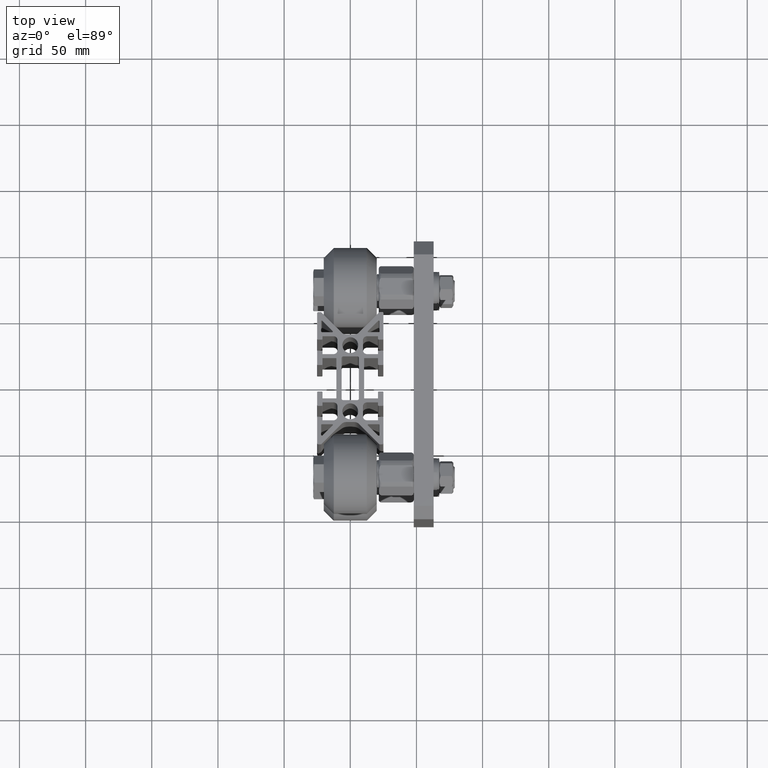
[diagram: clean part render]
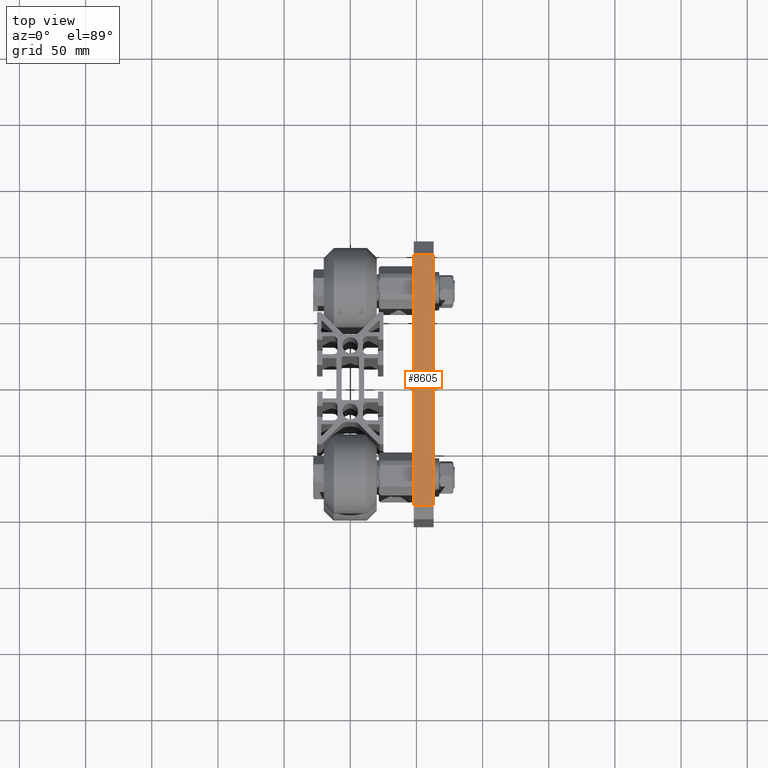
[diagram: same view with one face highlighted and labeled with its STEP entity id]
A machine part, top view. The second image highlights one B-rep face of the part: STEP entity #8605.
In plain terms, the highlighted planar face has unit normal (0, -0, 1).
Its self-contained STEP definition (entity closure, byte-faithful):
#1021=FACE_OUTER_BOUND('',#1524,.T.);
#1524=EDGE_LOOP('',(#7823,#7824,#7825,#7826));
#2568=LINE('',#16346,#3191);
#2571=LINE('',#16359,#3194);
#2572=LINE('',#16362,#3195);
#2573=LINE('',#16363,#3196);
#3191=VECTOR('',#12202,10.);
#3194=VECTOR('',#12215,10.);
#3195=VECTOR('',#12218,10.);
#3196=VECTOR('',#12219,10.);
#4046=VERTEX_POINT('',#16343);
#4047=VERTEX_POINT('',#16345);
#4052=VERTEX_POINT('',#16357);
#4053=VERTEX_POINT('',#16361);
#5306=EDGE_CURVE('',#4046,#4047,#2568,.T.);
#5313=EDGE_CURVE('',#4047,#4052,#2571,.T.);
#5314=EDGE_CURVE('',#4053,#4046,#2572,.T.);
#5315=EDGE_CURVE('',#4052,#4053,#2573,.T.);
#7823=ORIENTED_EDGE('',*,*,#5313,.F.);
#7824=ORIENTED_EDGE('',*,*,#5306,.F.);
#7825=ORIENTED_EDGE('',*,*,#5314,.F.);
#7826=ORIENTED_EDGE('',*,*,#5315,.F.);
#8162=PLANE('',#9794);
#8605=ADVANCED_FACE('',(#1021),#8162,.T.);
#9794=AXIS2_PLACEMENT_3D('',#16360,#12216,#12217);
#12202=DIRECTION('',(-1.,0.,0.));
#12215=DIRECTION('',(0.,0.,1.));
#12216=DIRECTION('center_axis',(0.,-1.,0.));
#12217=DIRECTION('ref_axis',(1.,0.,0.));
#12218=DIRECTION('',(0.,0.,-1.));
#12219=DIRECTION('',(1.,0.,0.));
#16343=CARTESIAN_POINT('',(95.,-185.,0.));
#16345=CARTESIAN_POINT('',(-95.,-185.,0.));
#16346=CARTESIAN_POINT('',(105.,-185.,0.));
#16357=CARTESIAN_POINT('',(-95.,-185.,15.));
#16359=CARTESIAN_POINT('',(-95.,-185.,0.));
#16360=CARTESIAN_POINT('Origin',(-105.,-185.,0.));
#16361=CARTESIAN_POINT('',(95.,-185.,15.));
#16362=CARTESIAN_POINT('',(95.,-185.,0.));
#16363=CARTESIAN_POINT('',(105.,-185.,15.));